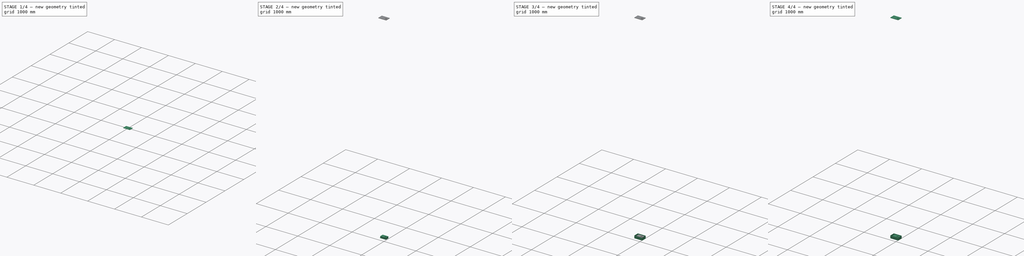
[diagram: build sequence overview — one tinted view per stage of 4, left to right]
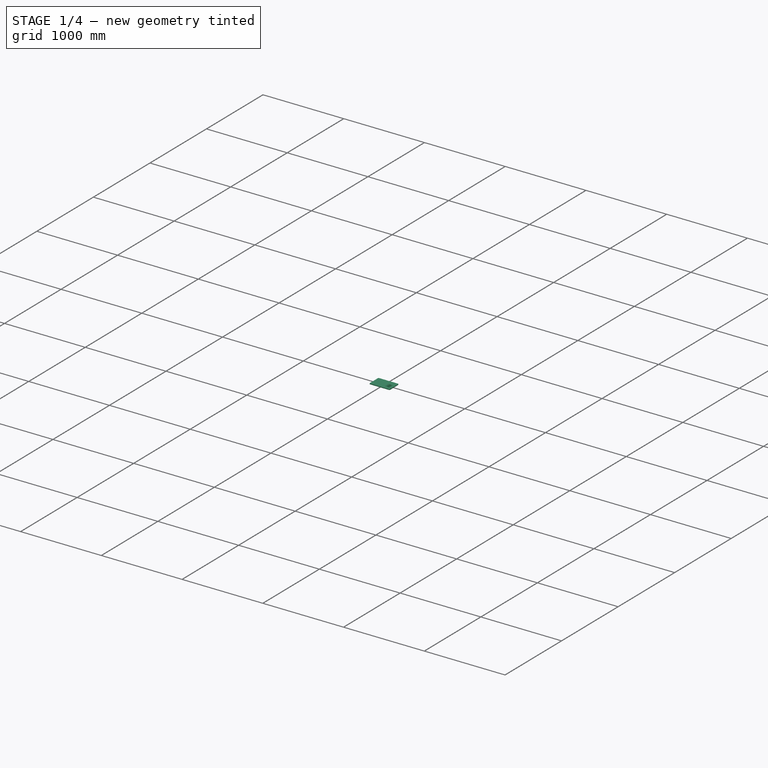
[diagram: stage 1 of 4 — iso view after this stage's code; geometry added in this stage tinted green]
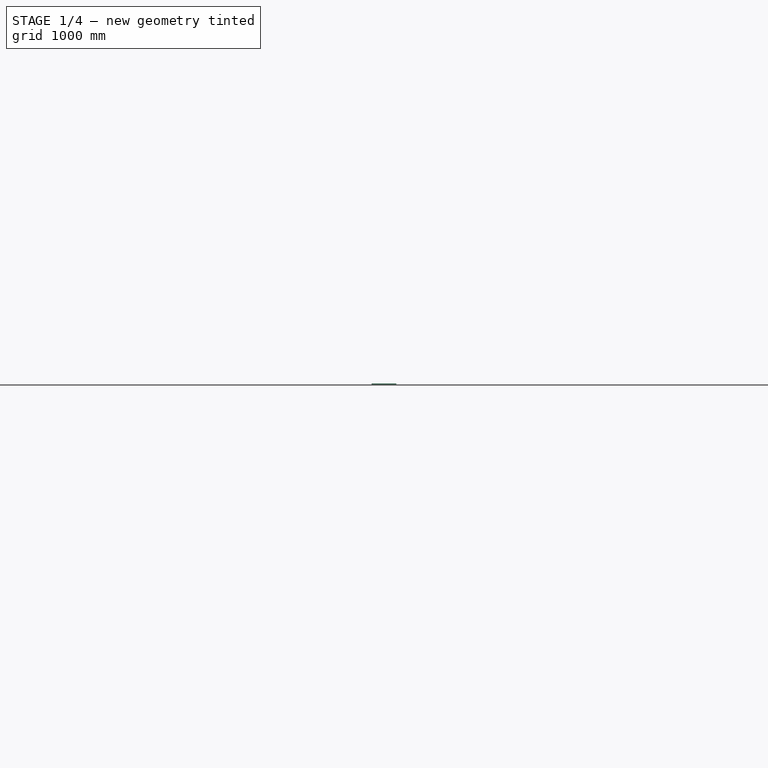
[diagram: stage 1 of 4 — front view after this stage's code; geometry added in this stage tinted green]
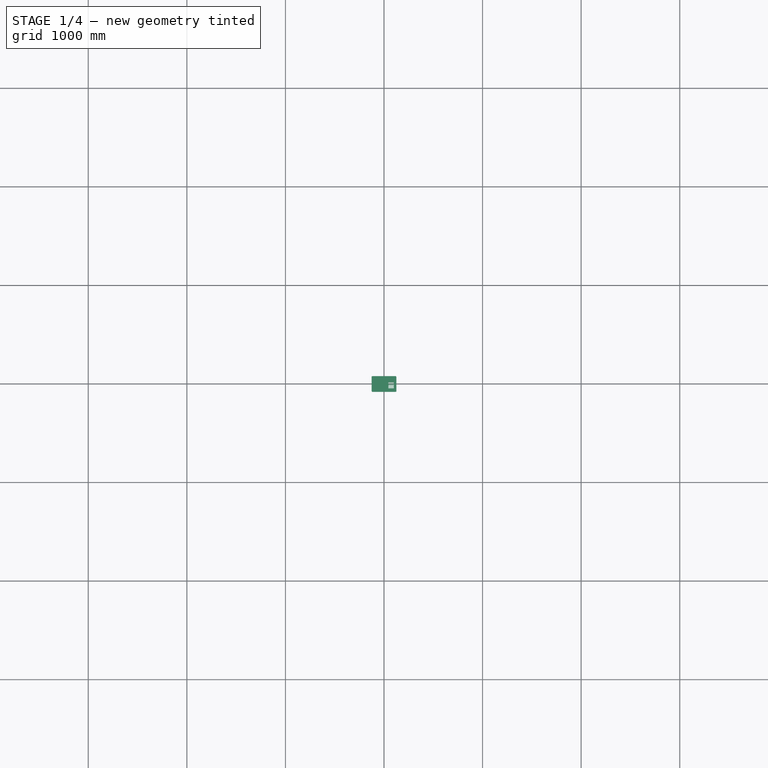
[diagram: stage 1 of 4 — top view after this stage's code; geometry added in this stage tinted green]
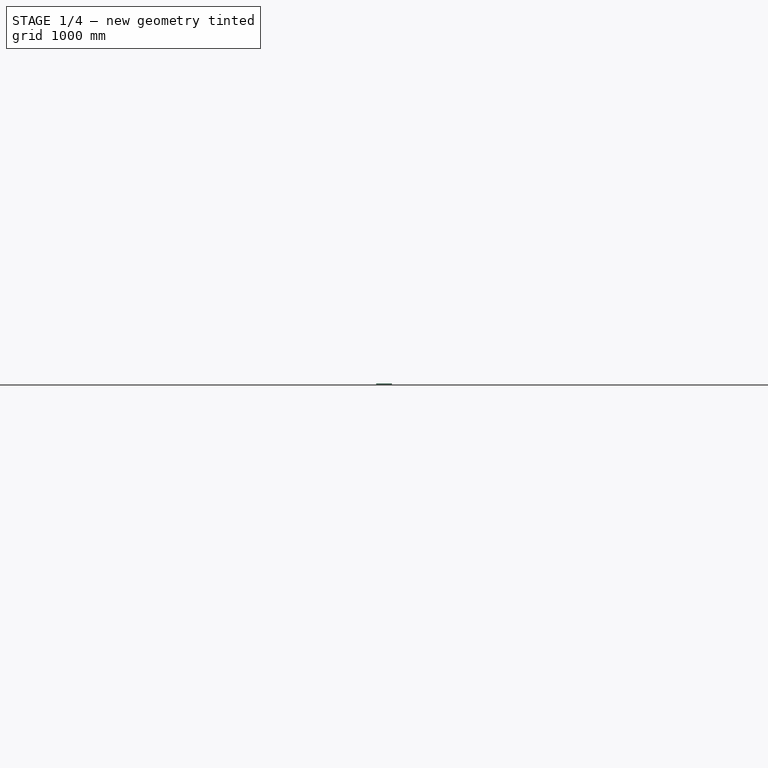
[diagram: stage 1 of 4 — right view after this stage's code; geometry added in this stage tinted green]
FCSTD DOCUMENT  (FreeCAD 0.21R33668 +26 (Git))
Label: PSU_Box
License: All rights reserved
LicenseURL: http://en.wikipedia.org/wiki/All_rights_reserved
objects: Sketcher::SketchObject×10, PartDesign::Pad×6, PartDesign::Pocket×3, PartDesign::Mirrored×3, PartDesign::Body×3, Spreadsheet::Sheet×1, PartDesign::MultiTransform×1, App::Part×1, PartDesign::LinearPattern×1
note: 36 computed .brp shape members not serialized (recipe doc carries the construction recipe); baked Part::Feature solids carry a one-line shape summary decoded from their .brp

FEATURE [Sketcher::SketchObject] Sketch006
  AttachmentOffset = pos=(0,0,77) rot=(0,0,1;0rad)
  FullyConstrained = true
  MapMode = 2
  Placement = pos=(0,0,5544) rot=(0,0,1;0rad)
  Support = -> [Sketch006]
  expr: .AttachmentOffset.Base.z = Spreadsheet.box_height
  expr: Constraints[16] = Spreadsheet.outside_radius
  expr: Constraints[17] = Spreadsheet.box_width
  expr: Constraints[19] = Spreadsheet.box_length
  sketch-geometry (9):
    g0: LineSegment StartX=125 StartY=-72 StartZ=0 EndX=125 EndY=72 EndZ=0
    g1: LineSegment StartX=117 StartY=80 StartZ=0 EndX=-117 EndY=80 EndZ=0
    g2: LineSegment StartX=-125 StartY=72 StartZ=0 EndX=-125 EndY=-72 EndZ=0
    g3: LineSegment StartX=-117 StartY=-80 StartZ=0 EndX=117 EndY=-80 EndZ=0
    g4: GeomPoint X=0 Y=0 Z=0
    g5: ArcOfCircle CenterX=-117 CenterY=72 CenterZ=0 NormalX=0 NormalY=0 NormalZ=1 AngleXU=0 Radius=8 StartAngle=1.5708 EndAngle=3.14159
    g6: ArcOfCircle CenterX=117 CenterY=72 CenterZ=0 NormalX=0 NormalY=0 NormalZ=1 AngleXU=0 Radius=8 StartAngle=-9e-16 EndAngle=1.5708
    g7: ArcOfCircle CenterX=117 CenterY=-72 CenterZ=0 NormalX=0 NormalY=0 NormalZ=1 AngleXU=0 Radius=8 StartAngle=4.71239 EndAngle=6.28319
    g8: ArcOfCircle CenterX=-117 CenterY=-72 CenterZ=0 NormalX=0 NormalY=0 NormalZ=1 AngleXU=0 Radius=8 StartAngle=3.14159 EndAngle=4.71239
  constraints (20):
    c: Horizontal(g1)
    c: Horizontal(g3)
    c: Vertical(g0)
    c: Vertical(g2)
    c: Coincident(g4,g-1)
    c: Tangent(g2,g5) = -1.5708
    c: Tangent(g1,g5) = -1.5708
    c: Tangent(g1,g6) = -1.5708
    c: Tangent(g0,g6) = -1.5708
    c: Tangent(g0,g7) = -1.5708
    c: Tangent(g3,g7) = -1.5708
    c: Tangent(g3,g8) = -1.5708
    c: Tangent(g2,g8) = -1.5708
    c: Equal(g8,g5)
    c: Equal(g5,g6)
    c: Equal(g6,g7)
    c: Radius(g5) = 8
    c: DistanceY(g3,g1) = 160
    c: Symmetric(g5,g7,g4)
    c: DistanceX(g2,g0) = 250
FEATURE [PartDesign::Pad] Pad004
  Direction = (0,0,1)
  Length = 9.625
  Length2 = 10
  Placement = pos=(0,0,5544) rot=(0,0,1;0rad)
  Profile = -> Sketch006
  ReferenceAxis = -> Sketch006 [N_Axis]
  Type = 0
  expr: Length = Spreadsheet.lid_height
FEATURE [PartDesign::Body] Body001
  Group = -> [Sketch005,Pad003,Sketch007,Pad005,Sketch008,Pocket001]
  Origin = -> Origin002
  Placement = pos=(16,0,0) rot=(0,0,1;0rad)
  Tip = -> Pocket001
FEATURE [App::Part] Part
  Group = -> [Body,Body001]
  Origin = -> Origin
FEATURE [Sketcher::SketchObject] Sketch009
  FullyConstrained = false
  MapMode = 5
  Placement = pos=(0,0,5553.62) rot=(0,0,1;0rad)
  Support = -> [Pad004]
  sketch-geometry (4):
    g0: ArcOfCircle CenterX=44.8841 CenterY=16.0943 CenterZ=0 NormalX=0 NormalY=0 NormalZ=1 AngleXU=0 Radius=1 StartAngle=1.5708 EndAngle=4.71239
    g1: ArcOfCircle CenterX=98.8841 CenterY=16.0943 CenterZ=0 NormalX=0 NormalY=0 NormalZ=1 AngleXU=0 Radius=1 StartAngle=4.71239 EndAngle=7.85398
    g2: LineSegment StartX=44.8841 StartY=15.0943 StartZ=0 EndX=98.8841 EndY=15.0943 EndZ=0
    g3: LineSegment StartX=98.8841 StartY=17.0943 StartZ=0 EndX=44.8841 EndY=17.0943 EndZ=0
  constraints (8):
    c: Tangent(g0,g2) = -1.5708
    c: Tangent(g2,g1) = -1.5708
    c: Tangent(g1,g3) = -1.5708
    c: Tangent(g3,g0) = -1.5708
    c: Equal(g0,g1)
    c: Horizontal(g2)
    c: DistanceX(g0,g1) = 54
    c: Diameter(g0) = 2
FEATURE [PartDesign::Pocket] Pocket002
  BaseFeature = -> Pad004
  Direction = (0,0,-1)
  Length = 5
  Length2 = 5
  Placement = pos=(0,0,5544) rot=(0,0,1;0rad)
  Profile = -> Sketch009
  ReferenceAxis = -> Sketch009 [N_Axis]
  Type = 2
FEATURE [PartDesign::LinearPattern] LinearPattern
  BaseFeature = -> Pocket002
  Direction = -> Sketch009 [V_Axis]
  Length = 60
  Occurrences = 20
  Originals = -> [Pocket002]
  Placement = pos=(0,0,5544) rot=(0,0,1;0rad)
  Reversed = true
FEATURE [Sketcher::SketchObject] Sketch010
  AttachmentOffset = pos=(0,0,81) rot=(0,0,1;0rad)
  FullyConstrained = false
  MapMode = 5
  Placement = pos=(0,0,81) rot=(0,0,1;0rad)
  Support = -> [XY_Plane003]
  sketch-geometry (9):
    g0: LineSegment StartX=113.138 StartY=-37.1358 StartZ=0 EndX=113.138 EndY=37.1358 EndZ=0
    g1: LineSegment StartX=83.3566 StartY=66.9168 StartZ=0 EndX=-83.3566 EndY=66.9168 EndZ=0
    g2: LineSegment StartX=-113.138 StartY=37.1358 StartZ=0 EndX=-113.138 EndY=-37.1358 EndZ=0
    g3: LineSegment StartX=-83.3566 StartY=-66.9168 StartZ=0 EndX=83.3566 EndY=-66.9168 EndZ=0
    g4: GeomPoint X=0 Y=0 Z=0
    g5: ArcOfCircle CenterX=-83.3566 CenterY=37.1358 CenterZ=0 NormalX=0 NormalY=0 NormalZ=1 AngleXU=0 Radius=29.781 StartAngle=1.5708 EndAngle=3.14159
    g6: ArcOfCircle CenterX=83.3566 CenterY=37.1358 CenterZ=0 NormalX=0 NormalY=0 NormalZ=1 AngleXU=0 Radius=29.781 StartAngle=1e-16 EndAngle=1.5708
    g7: ArcOfCircle CenterX=83.3566 CenterY=-37.1358 CenterZ=0 NormalX=0 NormalY=0 NormalZ=1 AngleXU=0 Radius=29.781 StartAngle=4.71239 EndAngle=6.28319
    g8: ArcOfCircle CenterX=-83.3566 CenterY=-37.1358 CenterZ=0 NormalX=0 NormalY=0 NormalZ=1 AngleXU=0 Radius=29.781 StartAngle=3.14159 EndAngle=4.71239
  constraints (17):
    c: Horizontal(g1)
    c: Horizontal(g3)
    c: Vertical(g0)
    c: Vertical(g2)
    c: Coincident(g4,g-1)
    c: Tangent(g2,g5) = -1.5708
    c: Tangent(g1,g5) = -1.5708
    c: Tangent(g1,g6) = -1.5708
    c: Tangent(g0,g6) = -1.5708
    c: Tangent(g0,g7) = -1.5708
    c: Tangent(g3,g7) = -1.5708
    c: Tangent(g3,g8) = -1.5708
    c: Tangent(g2,g8) = -1.5708
    c: Equal(g5,g6)
    c: Equal(g6,g7)
    c: Equal(g7,g8)
    c: Symmetric(g5,g7,g4)
FEATURE [PartDesign::Body] Body002
  Group = -> [Sketch006,Pad004,Sketch009,Pocket002,LinearPattern,Sketch010]
  Origin = -> Origin003
  Tip = -> LinearPattern
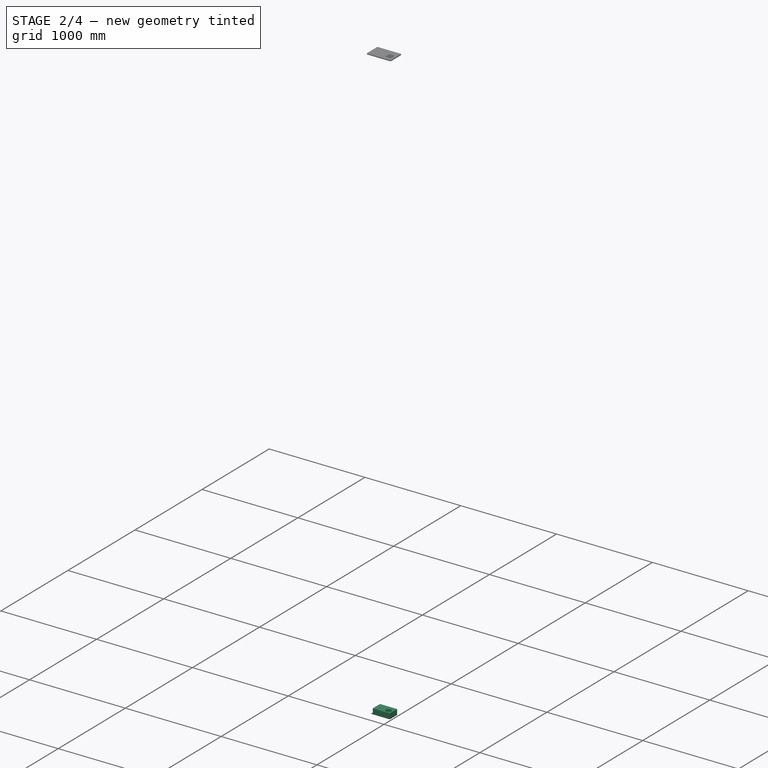
[diagram: stage 2 of 4 — iso view after this stage's code; geometry added in this stage tinted green]
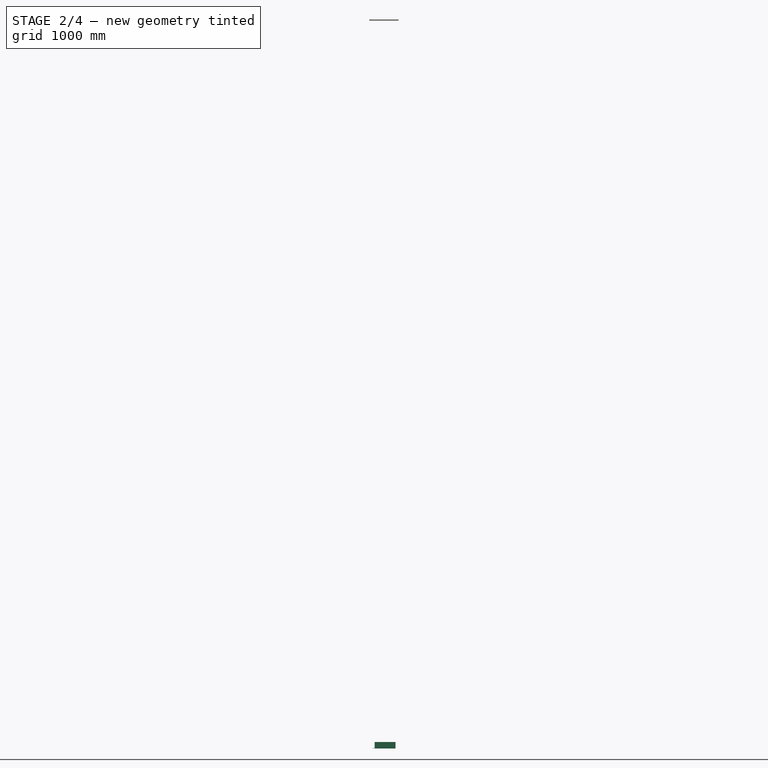
[diagram: stage 2 of 4 — front view after this stage's code; geometry added in this stage tinted green]
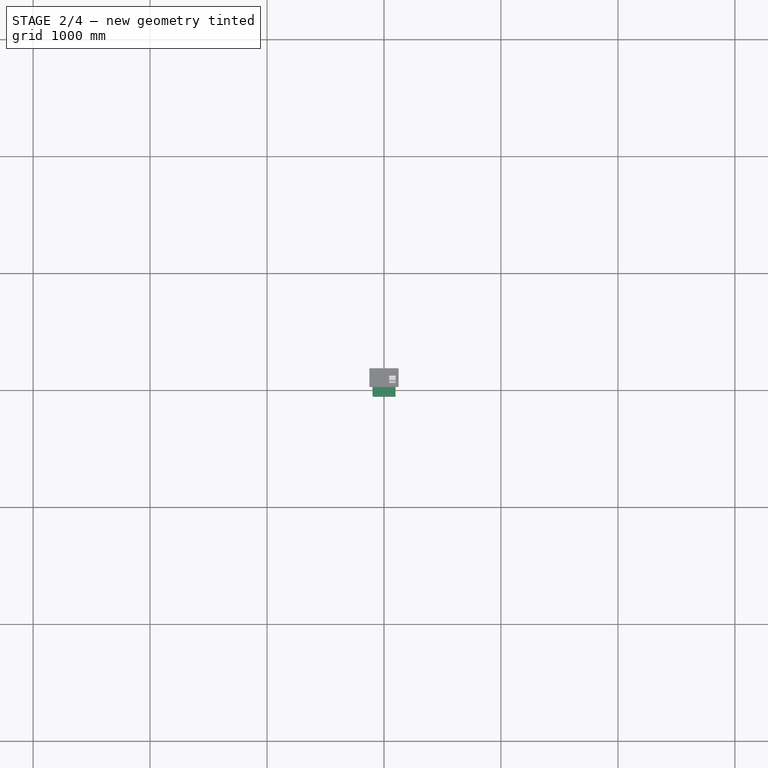
[diagram: stage 2 of 4 — top view after this stage's code; geometry added in this stage tinted green]
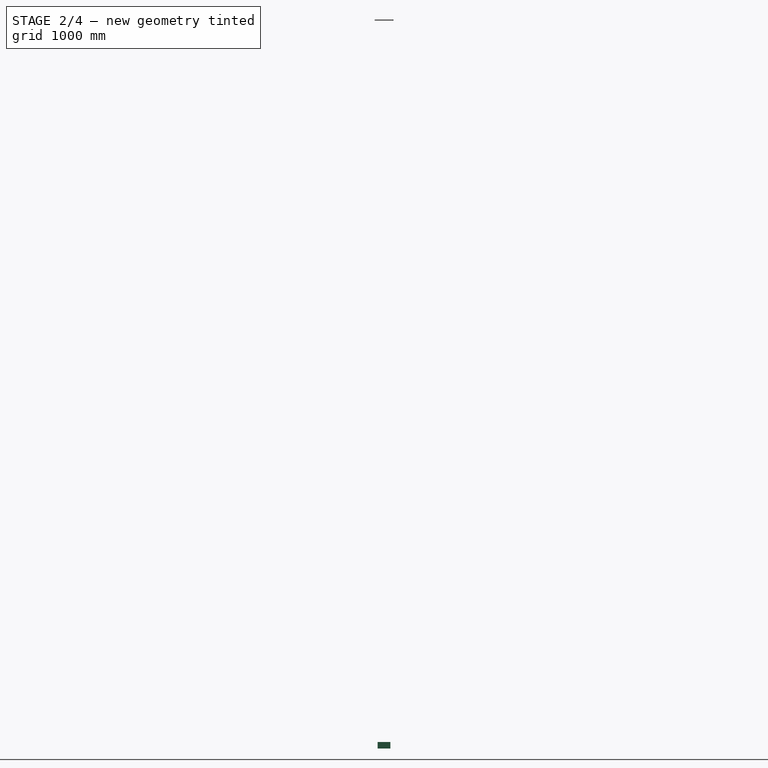
[diagram: stage 2 of 4 — right view after this stage's code; geometry added in this stage tinted green]
FEATURE [PartDesign::Body] Body
  Group = -> [Sketch,Pad,Sketch001,Pocket,Sketch002,Pad001,MultiTransform,Mirrored,Mirrored001,Sketch004,Pad002,Mirrored002]
  Origin = -> Origin001
  Tip = -> Mirrored002
FEATURE [Sketcher::SketchObject] Sketch005
  AttachmentOffset = pos=(0,0,13) rot=(0,0,1;0rad)
  FullyConstrained = true
  MapMode = 5
  Placement = pos=(0,0,13) rot=(0,0,1;0rad)
  Support = -> [XY_Plane002]
  sketch-geometry (14):
    g0: LineSegment StartX=-98.25 StartY=-54.5 StartZ=0 EndX=-98.25 EndY=54.5 EndZ=0
    g1: LineSegment StartX=-98.25 StartY=54.5 StartZ=0 EndX=98.25 EndY=54.5 EndZ=0
    g2: LineSegment StartX=98.25 StartY=54.5 StartZ=0 EndX=98.25 EndY=48 EndZ=0
    g3: LineSegment StartX=98.25 StartY=-54.5 StartZ=0 EndX=-98.25 EndY=-54.5 EndZ=0
    g4: GeomPoint X=0 Y=0 Z=0
    g5: Circle CenterX=-93.25 CenterY=-49.5 CenterZ=0 NormalX=0 NormalY=0 NormalZ=1 AngleXU=0 Radius=2.25
    g6: ArcOfCircle CenterX=95.75 CenterY=46 CenterZ=0 NormalX=0 NormalY=0 NormalZ=1 AngleXU=0 Radius=2 StartAngle=1.5708 EndAngle=4.71239
    g7: LineSegment StartX=95.75 StartY=44 StartZ=0 EndX=98.25 EndY=44 EndZ=0
    g8: LineSegment StartX=98.25 StartY=48 StartZ=0 EndX=95.75 EndY=48 EndZ=0
    g9: LineSegment StartX=98.25 StartY=44 StartZ=0 EndX=98.25 EndY=-54.5 EndZ=0
    g10: Circle CenterX=-35.75 CenterY=44.5 CenterZ=0 NormalX=0 NormalY=0 NormalZ=1 AngleXU=0 Radius=2
    g11: Circle CenterX=90.75 CenterY=44.5 CenterZ=0 NormalX=0 NormalY=0 NormalZ=1 AngleXU=0 Radius=2
    g12: Circle CenterX=90.75 CenterY=-40.5 CenterZ=0 NormalX=0 NormalY=0 NormalZ=1 AngleXU=0 Radius=2
    g13: Circle CenterX=-35.75 CenterY=-40.5 CenterZ=0 NormalX=0 NormalY=0 NormalZ=1 AngleXU=0 Radius=2
  constraints (38):
    c: Coincident(g0,g1)
    c: Coincident(g1,g2)
    c: Coincident(g9,g3)
    c: Coincident(g3,g0)
    c: Horizontal(g1)
    c: Horizontal(g3)
    c: Vertical(g0)
    c: Vertical(g2)
    c: Symmetric(g1,g0,g4)
    c: Coincident(g4,g-1)
    c: DistanceX(g1,g1) = 196.5
    c: DistanceY(g0,g0) = 109
    c: Tangent(g6,g7) = -1.5708
    c: Tangent(g8,g6) = -1.5708
    c: Horizontal(g7)
    c: Coincident(g2,g8)
    c: Coincident(g9,g7)
    c: Diameter(g6) = 4
    c: Horizontal(g8)
    c: DistanceX(g6,g7) = 2.5
    c: Vertical(g9)
    c: Equal(g1,g3)
    c: DistanceY(g6,g1) = 6.5
    c: Diameter(g5) = 4.5
    c: DistanceX(g0,g5) = 5
    c: DistanceY(g0,g5) = 5
    c: Vertical(g13,g10)
    c: Horizontal(g10,g11)
    c: Vertical(g11,g12)
    c: Horizontal(g13,g12)
    c: Equal(g10,g12)
    c: Equal(g12,g13)
    c: Equal(g10,g11)
    c: Diameter(g10) = 4
    c: DistanceY(g10,g0) = 10
    c: DistanceY(g13,g10) = 85
    c: DistanceX(g10,g11) = 126.5
    c: DistanceX(g0,g10) = 62.5
FEATURE [PartDesign::Pad] Pad003
  Direction = (0,0,1)
  Length = 2
  Length2 = 10
  Profile = -> Sketch005
  ReferenceAxis = -> Sketch005 [N_Axis]
  Type = 0
FEATURE [Sketcher::SketchObject] Sketch007
  FullyConstrained = true
  MapMode = 5
  Placement = pos=(0,0,15) rot=(0,0,1;0rad)
  Support = -> [Pad003]
  sketch-geometry (5):
    g0: LineSegment StartX=-79.64 StartY=54.5 StartZ=0 EndX=98.36 EndY=54.5 EndZ=0
    g1: LineSegment StartX=98.36 StartY=54.5 StartZ=0 EndX=98.36 EndY=-54.5 EndZ=0
    g2: LineSegment StartX=98.36 StartY=-54.5 StartZ=0 EndX=-79.64 EndY=-54.5 EndZ=0
    g3: LineSegment StartX=-79.64 StartY=-54.5 StartZ=0 EndX=-79.64 EndY=54.5 EndZ=0
    g4: Circle CenterX=55.36 CenterY=-11.5 CenterZ=0 NormalX=0 NormalY=0 NormalZ=1 AngleXU=0 Radius=28.5
  constraints (15):
    c: Coincident(g0,g1)
    c: Coincident(g1,g2)
    c: Coincident(g2,g3)
    c: Coincident(g3,g0)
    c: Horizontal(g0)
    c: Horizontal(g2)
    c: Vertical(g1)
    c: Vertical(g3)
    c: DistanceX(g0,g0) = 178
    c: DistanceY(g1,g1) = 109
    c: DistanceX(g4,g1) = 43
    c: DistanceY(g1,g4) = 43
    c: Diameter(g4) = 57
    c: DistanceX(g0) = -79.64
    c: DistanceY(g-1,g0) = 54.5
FEATURE [PartDesign::Pad] Pad005
  BaseFeature = -> Pad003
  Direction = (0,0,1)
  Length = 54
  Length2 = 10
  Profile = -> Sketch007
  ReferenceAxis = -> Sketch007 [N_Axis]
  Type = 0
FEATURE [Sketcher::SketchObject] Sketch008
  AttachmentOffset = pos=(0,0,-1) rot=(0,0,1;0rad)
  FullyConstrained = false
  MapMode = 5
  Placement = pos=(0,0,14) rot=(0,0,1;0rad)
  Support = -> [Pad005]
  sketch-geometry (4):
    g0: LineSegment StartX=-78.7167 StartY=53.4916 StartZ=0 EndX=97.5558 EndY=53.4916 EndZ=0
    g1: LineSegment StartX=97.5558 StartY=53.4916 StartZ=0 EndX=97.5558 EndY=-53.5619 EndZ=0
    g2: LineSegment StartX=97.5558 StartY=-53.5619 StartZ=0 EndX=-78.7167 EndY=-53.5619 EndZ=0
    g3: LineSegment StartX=-78.7167 StartY=-53.5619 StartZ=0 EndX=-78.7167 EndY=53.4916 EndZ=0
  constraints (8):
    c: Coincident(g0,g1)
    c: Coincident(g1,g2)
    c: Coincident(g2,g3)
    c: Coincident(g3,g0)
    c: Horizontal(g0)
    c: Horizontal(g2)
    c: Vertical(g1)
    c: Vertical(g3)
FEATURE [PartDesign::Pocket] Pocket001
  BaseFeature = -> Pad005
  Direction = (0,0,-1)
  Length = 48
  Length2 = 5
  Profile = -> Sketch008
  ReferenceAxis = -> Sketch008 [N_Axis]
  Reversed = true
  Type = 0
  expr: Length = 48
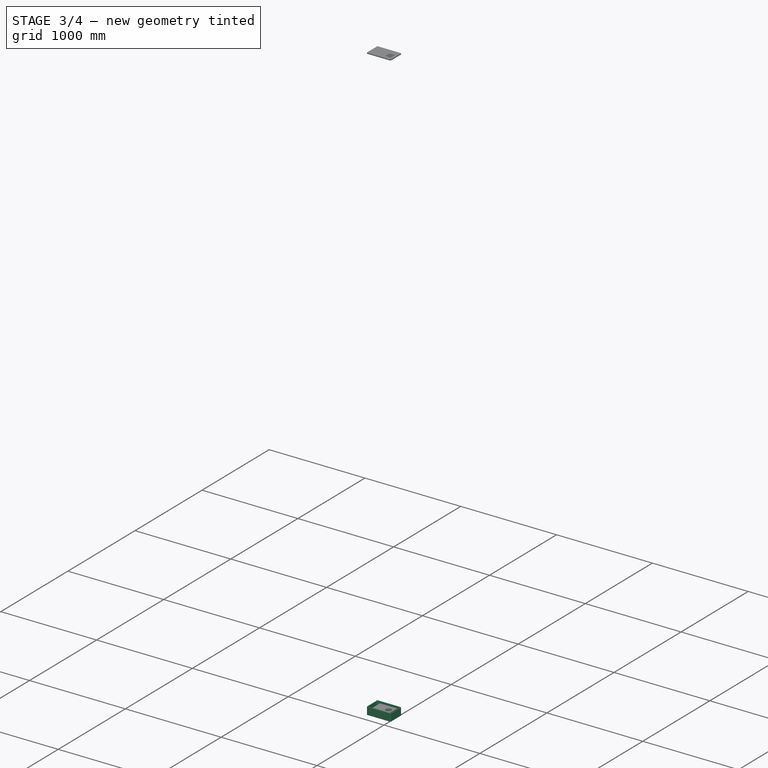
[diagram: stage 3 of 4 — iso view after this stage's code; geometry added in this stage tinted green]
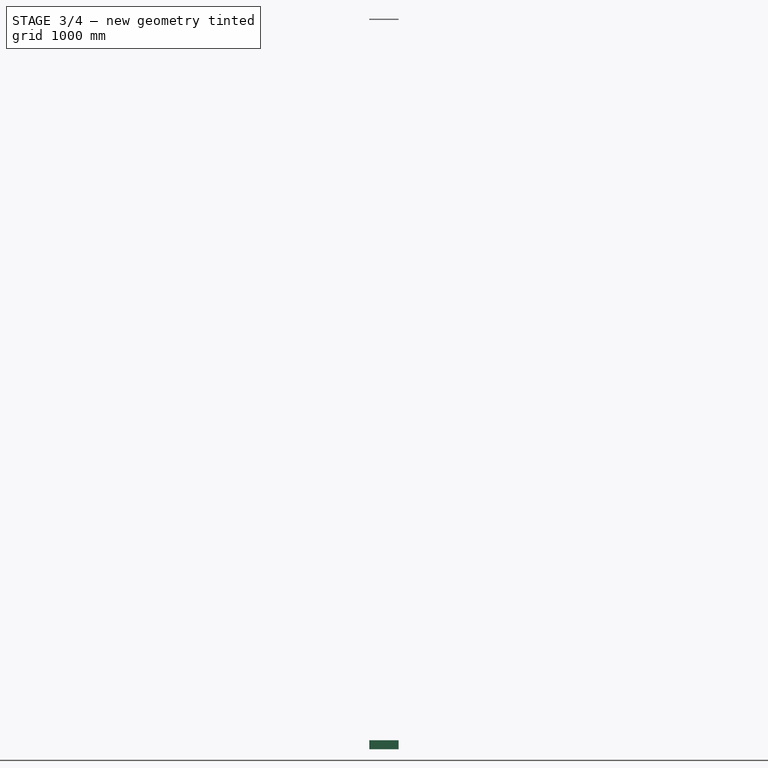
[diagram: stage 3 of 4 — front view after this stage's code; geometry added in this stage tinted green]
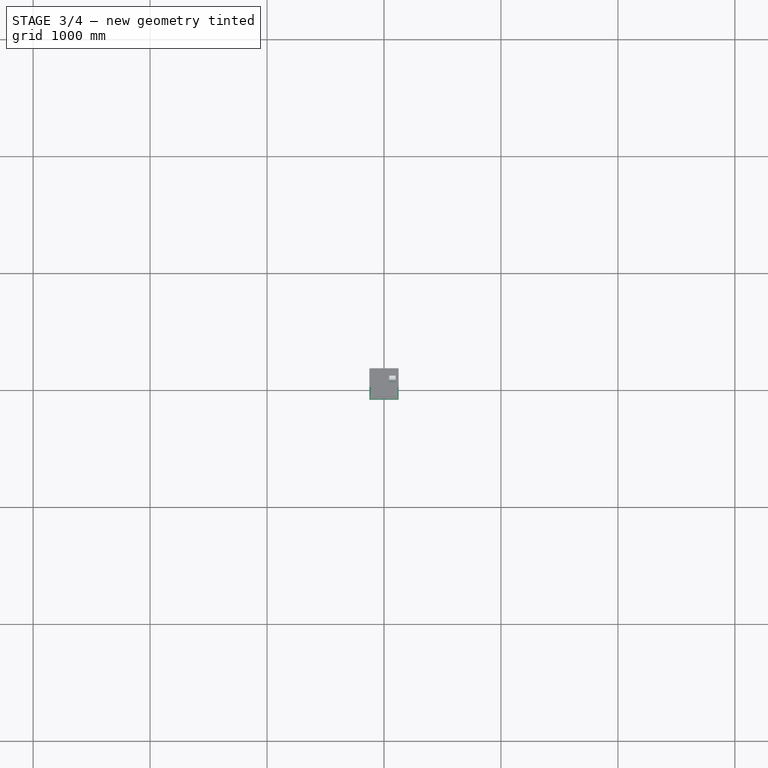
[diagram: stage 3 of 4 — top view after this stage's code; geometry added in this stage tinted green]
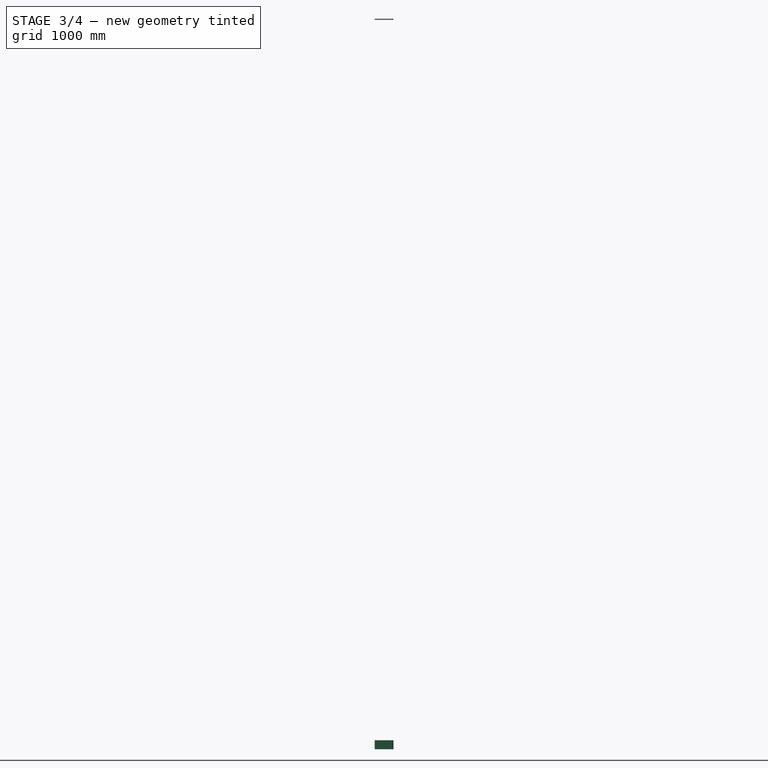
[diagram: stage 3 of 4 — right view after this stage's code; geometry added in this stage tinted green]
FEATURE [Sketcher::SketchObject] Sketch
  FullyConstrained = true
  MapMode = 5
  Support = -> [XY_Plane001]
  expr: Constraints[16] = Spreadsheet.box_length
  expr: Constraints[17] = Spreadsheet.box_width
  expr: Constraints[19] = Spreadsheet.outside_radius
  sketch-geometry (9):
    g0: LineSegment StartX=125 StartY=-72 StartZ=0 EndX=125 EndY=72 EndZ=0
    g1: LineSegment StartX=117 StartY=80 StartZ=0 EndX=-117 EndY=80 EndZ=0
    g2: LineSegment StartX=-125 StartY=72 StartZ=0 EndX=-125 EndY=-72 EndZ=0
    g3: LineSegment StartX=-117 StartY=-80 StartZ=0 EndX=117 EndY=-80 EndZ=0
    g4: GeomPoint X=0 Y=0 Z=0
    g5: ArcOfCircle CenterX=-117 CenterY=72 CenterZ=0 NormalX=0 NormalY=0 NormalZ=1 AngleXU=0 Radius=8 StartAngle=1.5708 EndAngle=3.14159
    g6: ArcOfCircle CenterX=117 CenterY=72 CenterZ=0 NormalX=0 NormalY=0 NormalZ=1 AngleXU=0 Radius=8 StartAngle=-9e-16 EndAngle=1.5708
    g7: ArcOfCircle CenterX=117 CenterY=-72 CenterZ=0 NormalX=0 NormalY=0 NormalZ=1 AngleXU=0 Radius=8 StartAngle=4.71239 EndAngle=6.28319
    g8: ArcOfCircle CenterX=-117 CenterY=-72 CenterZ=0 NormalX=0 NormalY=0 NormalZ=1 AngleXU=0 Radius=8 StartAngle=3.14159 EndAngle=4.71239
  constraints (20):
    c: Horizontal(g1)
    c: Horizontal(g3)
    c: Vertical(g0)
    c: Vertical(g2)
    c: Coincident(g4,g-1)
    c: Tangent(g2,g5) = -1.5708
    c: Tangent(g1,g5) = -1.5708
    c: Tangent(g1,g6) = -1.5708
    c: Tangent(g0,g6) = -1.5708
    c: Tangent(g0,g7) = -1.5708
    c: Tangent(g3,g7) = -1.5708
    c: Tangent(g3,g8) = -1.5708
    c: Tangent(g2,g8) = -1.5708
    c: Equal(g5,g6)
    c: Equal(g6,g7)
    c: Equal(g7,g8)
    c: DistanceX(g2,g0) = 250
    c: DistanceY(g3,g1) = 160
    c: Symmetric(g5,g7,g4)
    c: Radius(g5) = 8
FEATURE [PartDesign::Pad] Pad
  Direction = (0,0,1)
  Length = 77
  Length2 = 10
  Profile = -> Sketch
  ReferenceAxis = -> Sketch [N_Axis]
  Type = 0
  expr: Length = Spreadsheet.box_height
FEATURE [Spreadsheet::Sheet] Spreadsheet
  cells = A2='box_length; B2(box_length)=250; A3='box_width; B3(box_width)=160; A4='box_height; B4(box_height)=77; A5='outside_radius; B5(outside_radius)==B7 + 2; C5='calc; A6='inside_radius; B6(inside_radius)==B5 - B7; C6='calc; A7='wall_thickness; B7(wall_thickness)=6; A8='hole_diameter; B8(hole_diameter)=6; A9='lug_height; B9(lug_height)==B4 - B15 - B7; C9='calc; A10='lug_radius; B10(lug_radius)==B8 * 2.5; C10='calc; A11='hole_centre_length; B11(hole_centre_length)==B13 / 2 - B8; C11='calc; A12='hole_centre_width; B12(hole_centre_width)==B14 / 2 - B8; C12='calc; A13='box_inside_length; B13(box_inside_length)==B2 - B7 * 2; C13='calc; A14='box_inside_width; B14(box_inside_width)==B3 - B7 * 2; C14='calc; A15='base_thickness; B15(base_thickness)==B7 * 1.5; C15='calc; A17='clearance_sides; B17(clearance_sides)=0.2; A18='clearance_hole; B18(clearance_hole)==B8 + 2; A19='lid_height; B19(lid_height)==B4 / 8
FEATURE [Sketcher::SketchObject] Sketch001
  AttachmentOffset = pos=(0,0,9) rot=(0,0,1;0rad)
  FullyConstrained = true
  MapMode = 5
  Placement = pos=(0,0,9) rot=(0,0,1;0rad)
  Support = -> [XY_Plane001]
  expr: .AttachmentOffset.Base.z = Spreadsheet.base_thickness
  expr: Constraints[17] = Spreadsheet.inside_radius
  expr: Constraints[18] = Spreadsheet.box_inside_width
  expr: Constraints[19] = Spreadsheet.box_inside_length
  sketch-geometry (9):
    g0: LineSegment StartX=119 StartY=-72 StartZ=0 EndX=119 EndY=72 EndZ=0
    g1: LineSegment StartX=117 StartY=74 StartZ=0 EndX=-117 EndY=74 EndZ=0
    g2: LineSegment StartX=-119 StartY=72 StartZ=0 EndX=-119 EndY=-72 EndZ=0
    g3: LineSegment StartX=-117 StartY=-74 StartZ=0 EndX=117 EndY=-74 EndZ=0
    g4: GeomPoint X=0 Y=0 Z=0
    g5: ArcOfCircle CenterX=-117 CenterY=72 CenterZ=0 NormalX=0 NormalY=0 NormalZ=1 AngleXU=0 Radius=2 StartAngle=1.5708 EndAngle=3.14159
    g6: ArcOfCircle CenterX=117 CenterY=72 CenterZ=0 NormalX=0 NormalY=0 NormalZ=1 AngleXU=0 Radius=2 StartAngle=9e-16 EndAngle=1.5708
    g7: ArcOfCircle CenterX=117 CenterY=-72 CenterZ=0 NormalX=0 NormalY=0 NormalZ=1 AngleXU=0 Radius=2 StartAngle=4.71239 EndAngle=6.28319
    g8: ArcOfCircle CenterX=-117 CenterY=-72 CenterZ=0 NormalX=0 NormalY=0 NormalZ=1 AngleXU=0 Radius=2 StartAngle=3.14159 EndAngle=4.71239
  constraints (20):
    c: Horizontal(g1)
    c: Horizontal(g3)
    c: Vertical(g0)
    c: Vertical(g2)
    c: Coincident(g4,g-1)
    c: Tangent(g2,g5) = -1.5708
    c: Tangent(g1,g5) = -1.5708
    c: Tangent(g1,g6) = -1.5708
    c: Tangent(g0,g6) = -1.5708
    c: Tangent(g0,g7) = -1.5708
    c: Tangent(g3,g7) = -1.5708
    c: Tangent(g3,g8) = -1.5708
    c: Tangent(g2,g8) = -1.5708
    c: Symmetric(g5,g7,g4)
    c: Equal(g5,g6)
    c: Equal(g6,g7)
    c: Equal(g7,g8)
    c: Radius(g5) = 2
    c: DistanceY(g3,g1) = 148
    c: DistanceX(g2,g0) = 238
FEATURE [PartDesign::Pocket] Pocket
  BaseFeature = -> Pad
  Direction = (0,0,-1)
  Length = 5
  Length2 = 5
  Profile = -> Sketch001
  ReferenceAxis = -> Sketch001 [N_Axis]
  Reversed = true
  Type = 1
FEATURE [Sketcher::SketchObject] Sketch002
  AttachmentOffset = pos=(0,0,9) rot=(0,0,1;0rad)
  FullyConstrained = true
  MapMode = 5
  Placement = pos=(0,0,9) rot=(0,0,1;0rad)
  Support = -> [XY_Plane001]
  expr: .AttachmentOffset.Base.z = Spreadsheet.base_thickness
  expr: Constraints[10] = Spreadsheet.hole_centre_length
  expr: Constraints[11] = Spreadsheet.hole_centre_width
  expr: Constraints[6] = Spreadsheet.hole_diameter
  expr: Constraints[7] = Spreadsheet.lug_radius
  expr: Constraints[8] = Spreadsheet.hole_diameter
  expr: Constraints[9] = Spreadsheet.hole_diameter
  sketch-geometry (4):
    g0: LineSegment StartX=-119 StartY=74 StartZ=0 EndX=-104 EndY=74 EndZ=0
    g1: LineSegment StartX=-119 StartY=74 StartZ=0 EndX=-119 EndY=59 EndZ=0
    g2: ArcOfCircle CenterX=-119 CenterY=74 CenterZ=0 NormalX=0 NormalY=0 NormalZ=1 AngleXU=0 Radius=15 StartAngle=4.71239 EndAngle=6.28319
    g3: Circle CenterX=-113 CenterY=68 CenterZ=0 NormalX=0 NormalY=0 NormalZ=1 AngleXU=0 Radius=3
  constraints (12):
    c: Horizontal(g0)
    c: Coincident(g1,g0)
    c: Vertical(g1)
    c: Coincident(g2,g0)
    c: Coincident(g2,g0)
    c: Coincident(g2,g1)
    c: Diameter(g3) = 6
    c: Radius(g2) = 15
    c: DistanceY(g3,g0) = 6
    c: DistanceX(g0,g3) = 6
    c: DistanceX(g3,g-1) = 113
    c: DistanceY(g-1,g3) = 68
FEATURE [PartDesign::Pad] Pad001
  BaseFeature = -> Pocket
  Direction = (0,0,1)
  Length = 62
  Length2 = 10
  Profile = -> Sketch002
  ReferenceAxis = -> Sketch002 [N_Axis]
  Type = 0
  expr: Length = Spreadsheet.lug_height
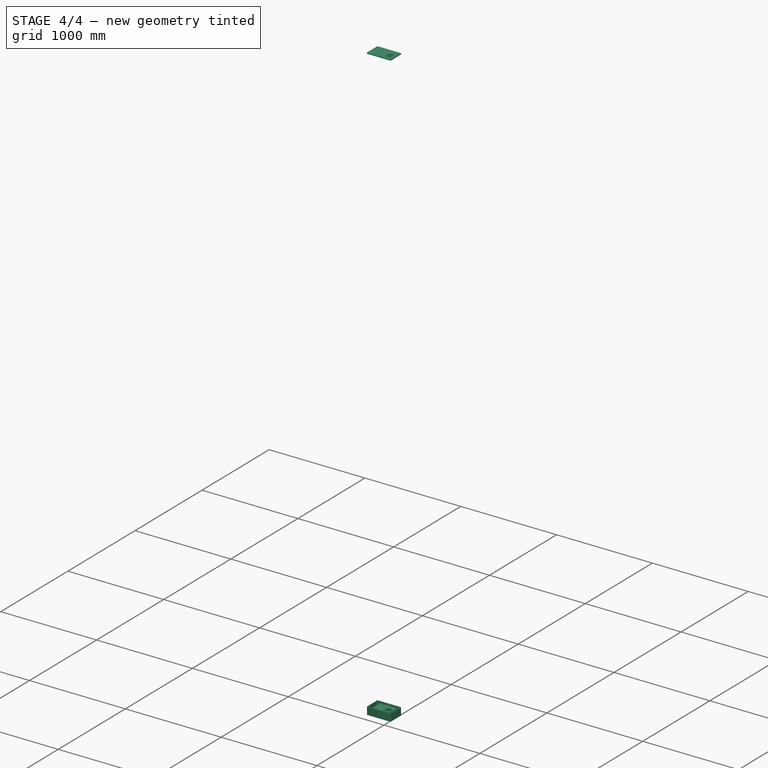
[diagram: stage 4 of 4 — iso view after this stage's code; geometry added in this stage tinted green]
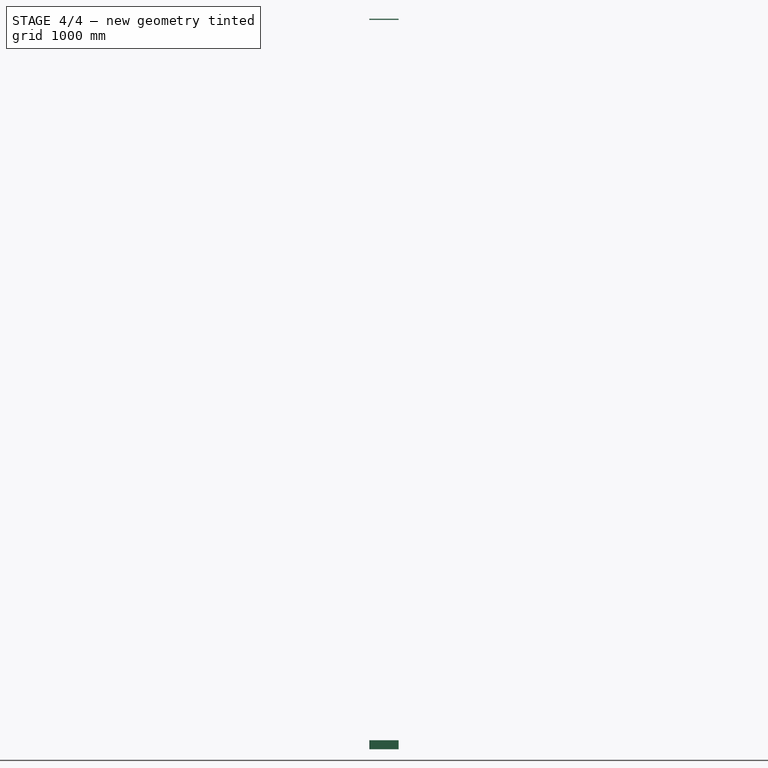
[diagram: stage 4 of 4 — front view after this stage's code; geometry added in this stage tinted green]
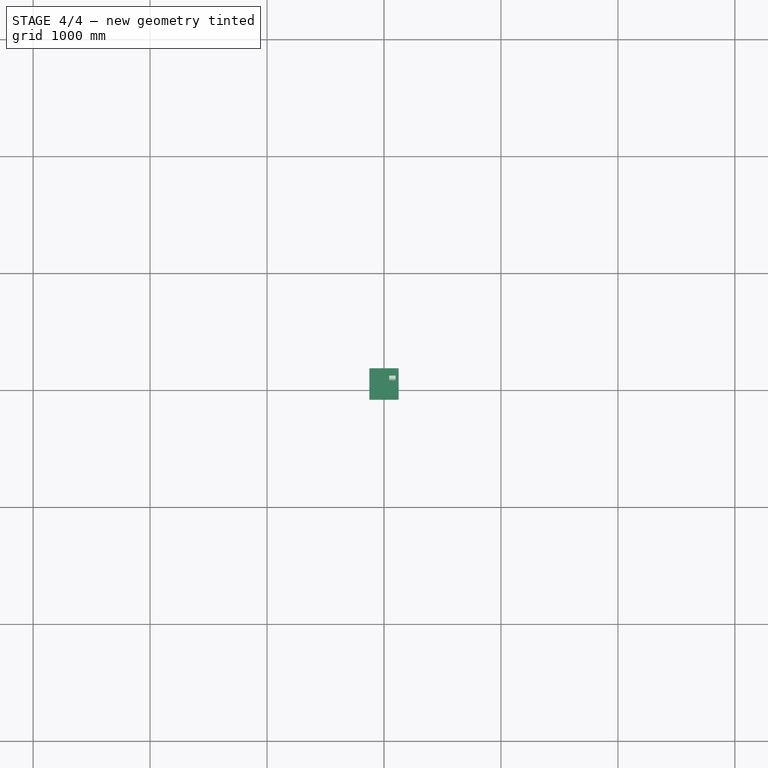
[diagram: stage 4 of 4 — top view after this stage's code; geometry added in this stage tinted green]
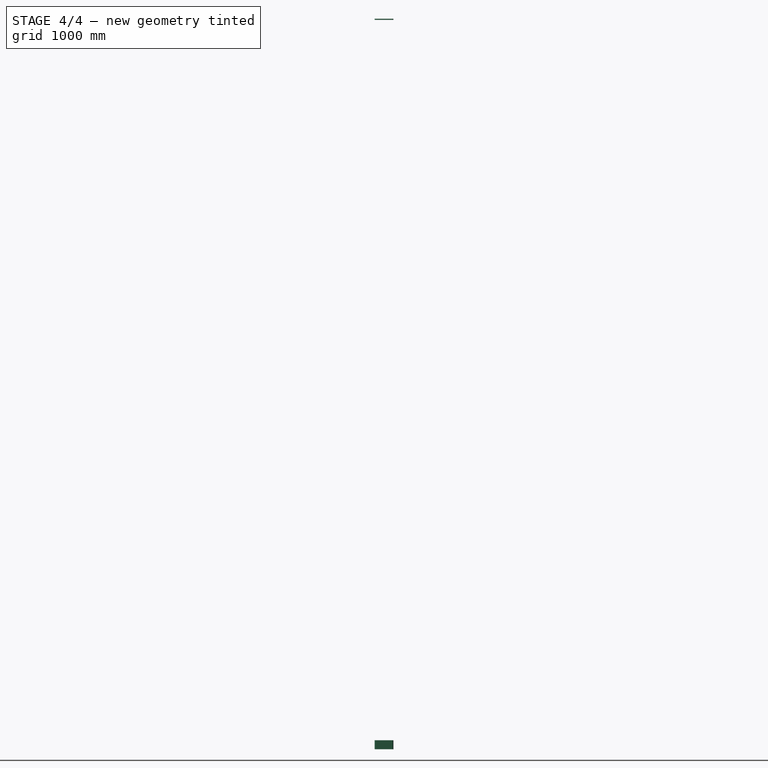
[diagram: stage 4 of 4 — right view after this stage's code; geometry added in this stage tinted green]
FEATURE [PartDesign::Mirrored] Mirrored
  MirrorPlane = -> Sketch002 [V_Axis]
FEATURE [PartDesign::Mirrored] Mirrored001
  MirrorPlane = -> Sketch002 [H_Axis]
FEATURE [PartDesign::MultiTransform] MultiTransform
  BaseFeature = -> Pad001
  Originals = -> [Pad001]
  Transformations = -> [Mirrored,Mirrored001]
FEATURE [Sketcher::SketchObject] Sketch004  label="Sketch003"
  AttachmentOffset = pos=(0,0,9) rot=(0,0,1;0rad)
  FullyConstrained = true
  MapMode = 5
  Placement = pos=(0,0,9) rot=(0,0,1;0rad)
  Support = -> [XY_Plane001]
  expr: .AttachmentOffset.Base.z = Spreadsheet.base_thickness
  expr: Constraints[4] = Spreadsheet.lug_radius
  expr: Constraints[6] = Spreadsheet.hole_diameter
  expr: Constraints[8] = Spreadsheet.hole_diameter
  expr: Constraints[9] = Spreadsheet.hole_centre_width
  sketch-geometry (3):
    g0: LineSegment StartX=-15 StartY=74 StartZ=0 EndX=15 EndY=74 EndZ=0
    g1: ArcOfCircle CenterX=0 CenterY=74 CenterZ=0 NormalX=0 NormalY=0 NormalZ=1 AngleXU=0 Radius=15 StartAngle=3.14159 EndAngle=6.28319
    g2: Circle CenterX=0 CenterY=68 CenterZ=0 NormalX=0 NormalY=0 NormalZ=1 AngleXU=0 Radius=3
  constraints (10):
    c: Horizontal(g0)
    c: PointOnObject(g1,g0)
    c: Coincident(g1,g0)
    c: Coincident(g0,g1)
    c: Radius(g1) = 15
    c: Vertical(g1,g-1)
    c: Diameter(g2) = 6
    c: Vertical(g2,g-1)
    c: DistanceY(g2,g1) = 6
    c: DistanceY(g-1,g2) = 68
FEATURE [PartDesign::Pad] Pad002
  BaseFeature = -> MultiTransform
  Direction = (0,0,1)
  Length = 62
  Length2 = 10
  Profile = -> Sketch004
  ReferenceAxis = -> Sketch004 [N_Axis]
  Type = 0
  expr: Length = Spreadsheet.lug_height
FEATURE [PartDesign::Mirrored] Mirrored002
  BaseFeature = -> Pad002
  MirrorPlane = -> XZ_Plane001
  Originals = -> [Pad002]
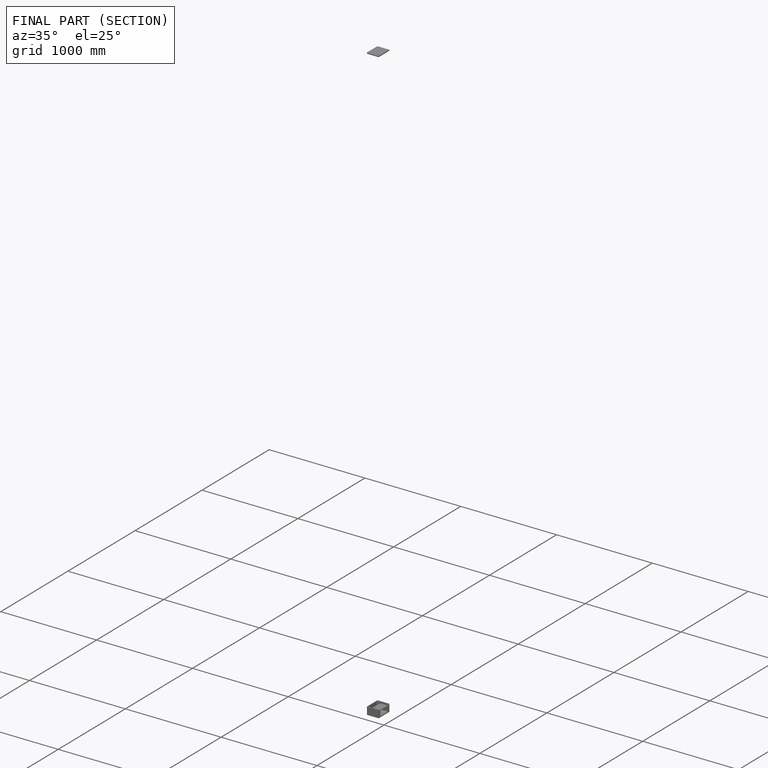
[diagram: finished part — half-section view (interior)]
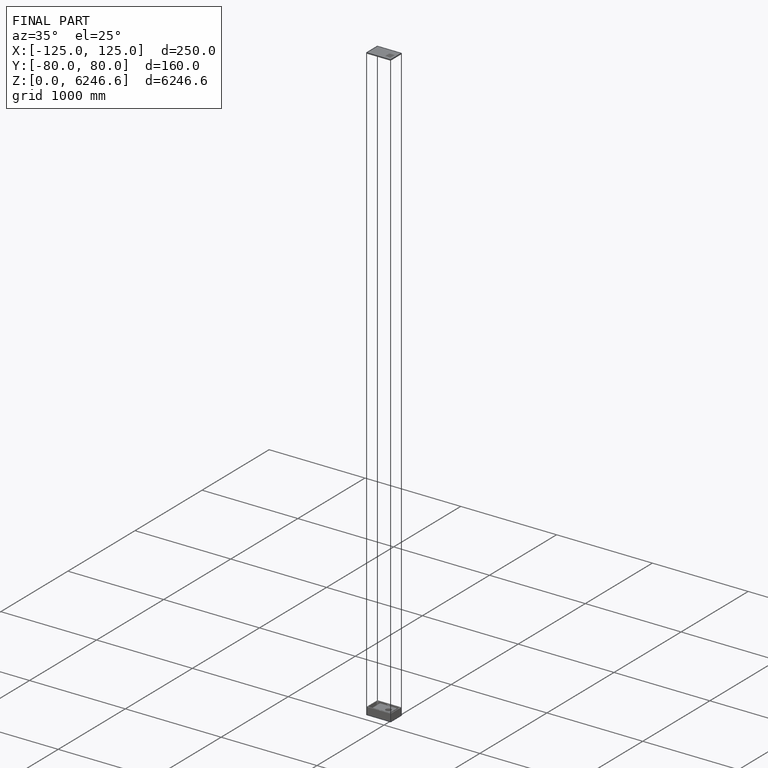
[diagram: finished part — iso view with bounding-box wireframe]
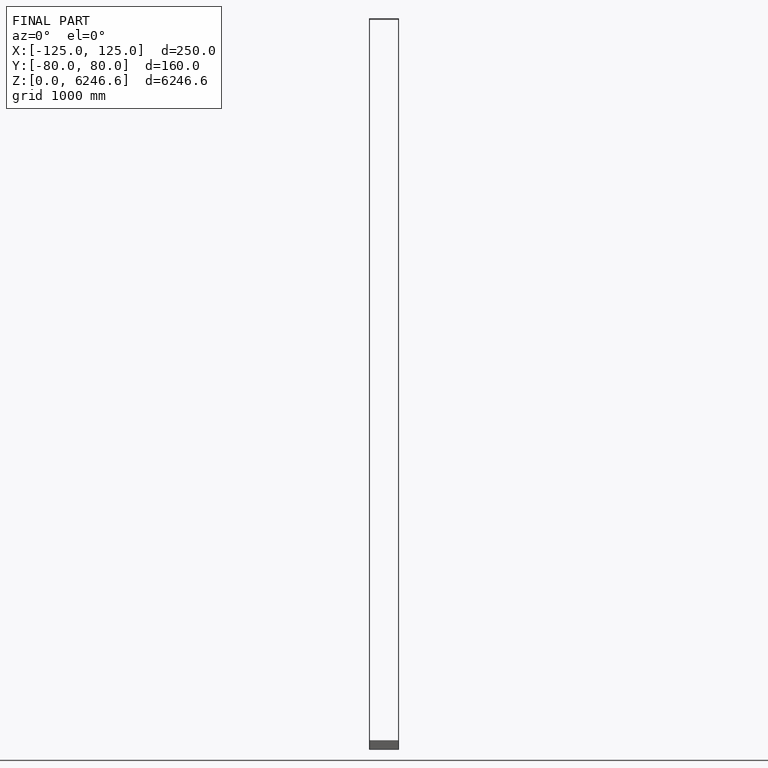
[diagram: finished part — front view with bounding-box wireframe]
